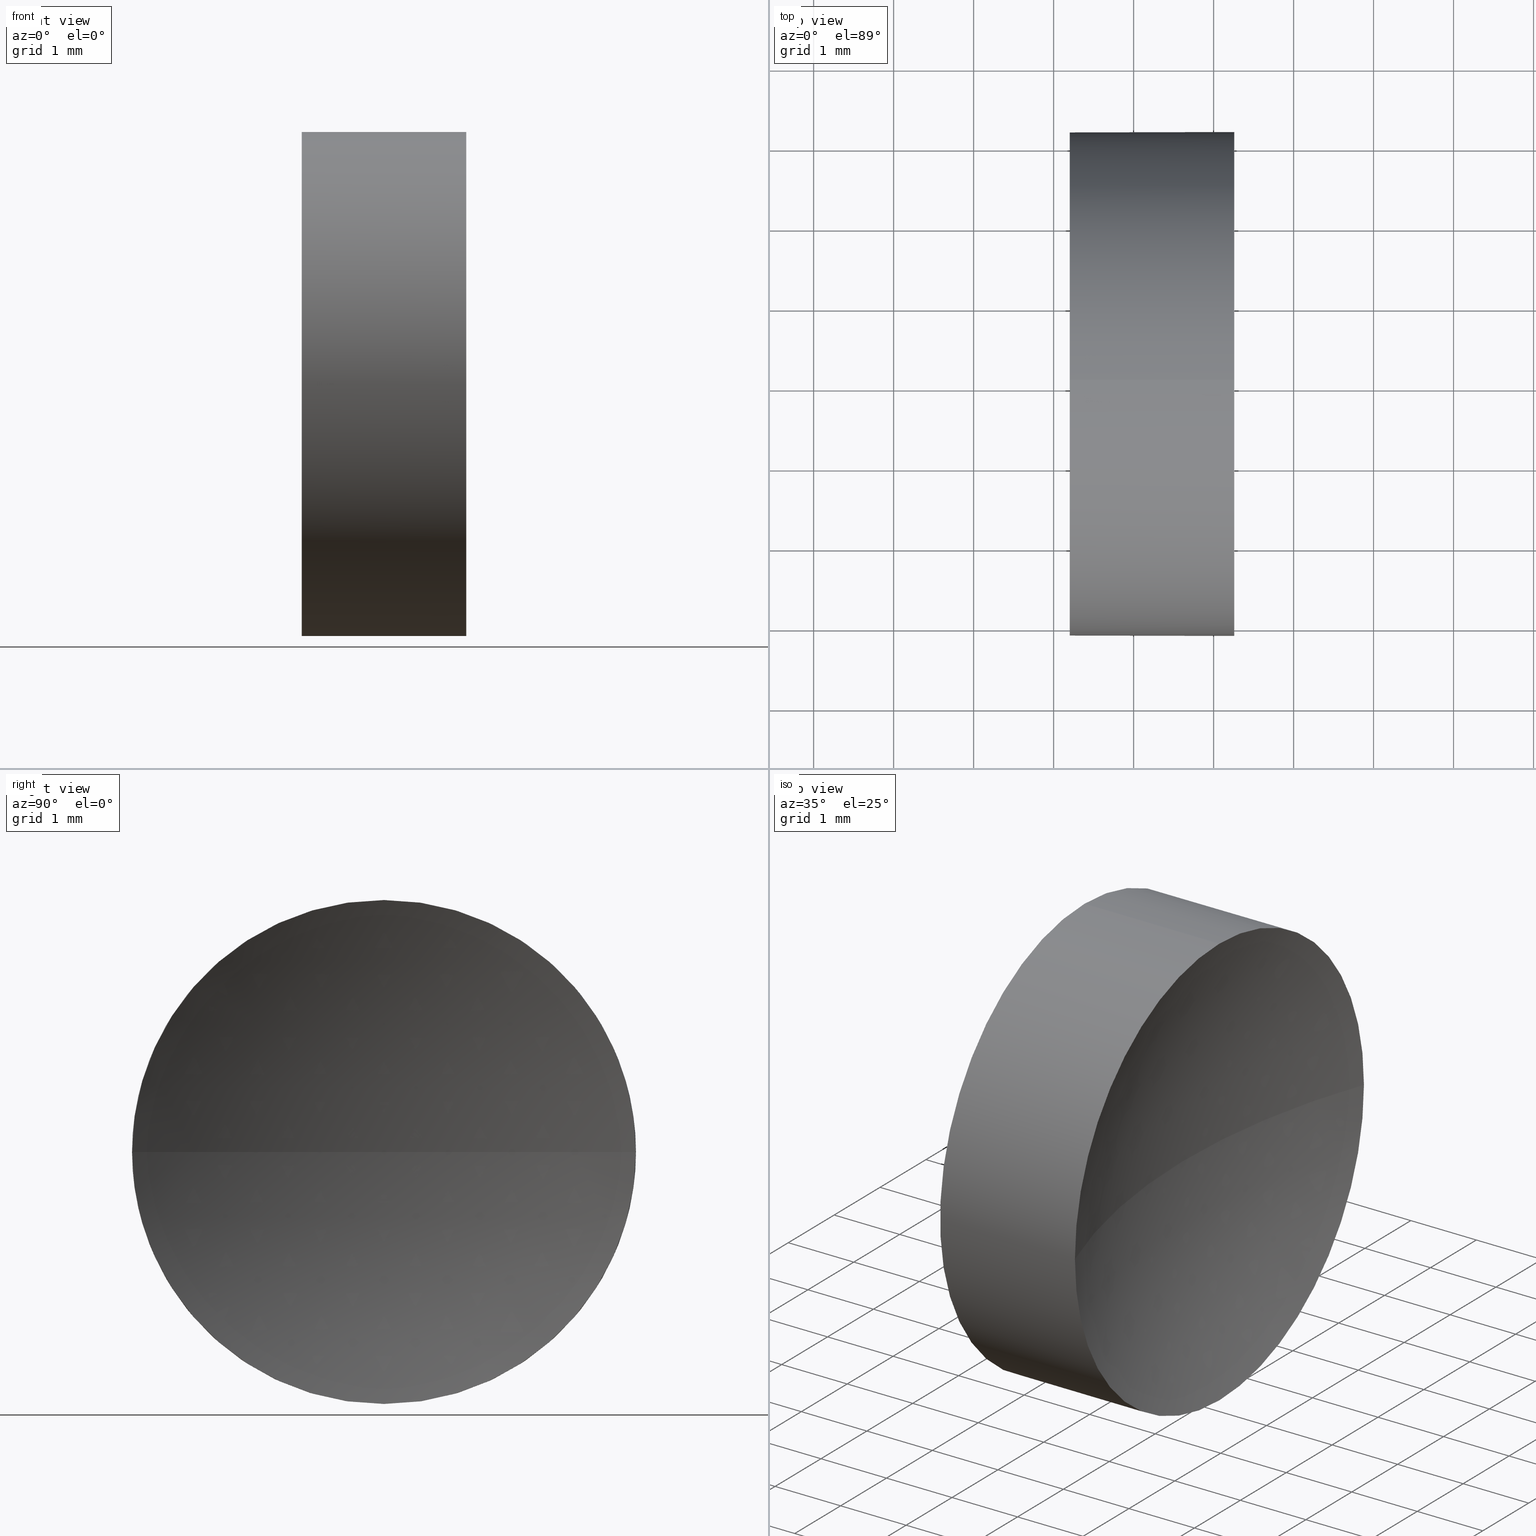
[diagram: canonical four-view strip — front | top / right | iso, engineering-drawing reading convention]
A machine part, canonical four-view strip (front | top / right | iso — engineering-drawing reading convention). The complete STEP part file that produces these views, byte-faithful:
ISO-10303-21;
HEADER;
FILE_DESCRIPTION (( 'STEP AP214' ),
    '1' );
FILE_NAME ('120247.STEP',
    '2019-06-24T06:06:14',
    ( '' ),
    ( '' ),
    'SwSTEP 2.0',
    'SolidWorks 2016',
    '' );
FILE_SCHEMA (( 'AUTOMOTIVE_DESIGN' ));
ENDSEC;

DATA;
#2 = DIRECTION ( 'NONE',  ( -1.000000000000000000, -0.0000000000000000000, -0.0000000000000000000 ) ) ;
#1 = CIRCLE ( 'NONE', #150, 3.149999999999998100 ) ;
#3 = CARTESIAN_POINT ( 'NONE',  ( 22.20087548928661300, 13.03112609140304000, -3.149999999999998100 ) ) ;
#4 = DIRECTION ( 'NONE',  ( -1.000000000000000000, -0.0000000000000000000, -0.0000000000000000000 ) ) ;
#5 = LINE ( 'NONE', #109, #106 ) ;
#6 = FILL_AREA_STYLE_COLOUR ( '', #34 ) ;
#7 = DIRECTION ( 'NONE',  ( 0.0000000000000000000, 0.0000000000000000000, 1.000000000000000000 ) ) ;
#8 =( LENGTH_UNIT ( ) NAMED_UNIT ( * ) SI_UNIT ( .MILLI., .METRE. ) );
#9 = DIRECTION ( 'NONE',  ( -1.000000000000000000, -0.0000000000000000000, -0.0000000000000000000 ) ) ;
#10 = CIRCLE ( 'NONE', #122, 9.170000000000005300 ) ;
#11 = SURFACE_STYLE_USAGE ( .BOTH. , #146 ) ;
#12 = FACE_OUTER_BOUND ( 'NONE', #152, .T. ) ;
#13 = ORIENTED_EDGE ( 'NONE', *, *, #71, .T. ) ;
#14 = DIRECTION ( 'NONE',  ( 0.0000000000000000000, 0.0000000000000000000, 1.000000000000000000 ) ) ;
#15 = DIRECTION ( 'NONE',  ( -1.000000000000000000, -0.0000000000000000000, -0.0000000000000000000 ) ) ;
#16 = SPHERICAL_SURFACE ( 'NONE', #158, 9.170000000000005300 ) ;
#17 = ORIENTED_EDGE ( 'NONE', *, *, #110, .F. ) ;
#18 = CARTESIAN_POINT ( 'NONE',  ( 24.25888386169071300, 13.03112609140304000, 0.0000000000000000000 ) ) ;
#19 = DIRECTION ( 'NONE',  ( 0.0000000000000000000, -1.000000000000000000, -1.224646799147353200E-016 ) ) ;
#20 =( NAMED_UNIT ( * ) PLANE_ANGLE_UNIT ( ) SI_UNIT ( $, .RADIAN. ) );
#21 = CIRCLE ( 'NONE', #131, 3.149999999999998100 ) ;
#22 = VERTEX_POINT ( 'NONE', #3 ) ;
#23 = AXIS2_PLACEMENT_3D ( 'NONE', #18, #118, #7 ) ;
#24 = ADVANCED_FACE ( 'NONE', ( #183 ), #132, .T. ) ;
#25 = EDGE_LOOP ( 'NONE', ( #60, #127, #17, #173 ) ) ;
#26 = ORIENTED_EDGE ( 'NONE', *, *, #80, .T. ) ;
#27 = PLANE ( 'NONE',  #107 ) ;
#28 = EDGE_CURVE ( 'NONE', #67, #45, #55, .T. ) ;
#29 = CARTESIAN_POINT ( 'NONE',  ( 24.25888386169071300, 13.03112609140304000, 0.0000000000000000000 ) ) ;
#30 = CIRCLE ( 'NONE', #130, 3.149999999999998100 ) ;
#31 = CARTESIAN_POINT ( 'NONE',  ( 21.15647192244426100, 13.03112609140304000, 3.149999999999998100 ) ) ;
#32 = DIRECTION ( 'NONE',  ( -1.000000000000000000, -0.0000000000000000000, -0.0000000000000000000 ) ) ;
#33 = AXIS2_PLACEMENT_3D ( 'NONE', #129, #101, #66 ) ;
#35 =( NAMED_UNIT ( * ) PLANE_ANGLE_UNIT ( ) SI_UNIT ( $, .RADIAN. ) );
#34 = COLOUR_RGB ( '',1.000000000000000000, 1.000000000000000000, 1.000000000000000000 ) ;
#36 = ORIENTED_EDGE ( 'NONE', *, *, #65, .T. ) ;
#37 = CARTESIAN_POINT ( 'NONE',  ( 24.25888386169071300, 13.03112609140304000, 0.0000000000000000000 ) ) ;
#38 = AXIS2_PLACEMENT_3D ( 'NONE', #74, #59, #51 ) ;
#39 = CARTESIAN_POINT ( 'NONE',  ( 32.87087550125935600, 13.03112609140304600, 0.0000000000000000000 ) ) ;
#40 =( LENGTH_UNIT ( ) NAMED_UNIT ( * ) SI_UNIT ( .MILLI., .METRE. ) );
#41 = FACE_OUTER_BOUND ( 'NONE', #90, .T. ) ;
#42 = PRODUCT_DEFINITION_SHAPE ( 'NONE', 'NONE',  #186 ) ;
#43 = CIRCLE ( 'NONE', #104, 9.170000000000005300 ) ;
#44 = PRESENTATION_LAYER_ASSIGNMENT (  '', '', ( #78 ) ) ;
#45 = VERTEX_POINT ( 'NONE', #126 ) ;
#46 =( GEOMETRIC_REPRESENTATION_CONTEXT ( 3 ) GLOBAL_UNCERTAINTY_ASSIGNED_CONTEXT ( ( #180 ) ) GLOBAL_UNIT_ASSIGNED_CONTEXT ( ( #128, #20, #120 ) ) REPRESENTATION_CONTEXT ( 'NONE', 'WORKASPACE' ) );
#47 = CARTESIAN_POINT ( 'NONE',  ( 21.15647192244426100, 13.03112609140304000, 0.0000000000000000000 ) ) ;
#48 = DIRECTION ( 'NONE',  ( -1.000000000000000000, -0.0000000000000000000, -0.0000000000000000000 ) ) ;
#49 = VERTEX_POINT ( 'NONE', #82 ) ;
#50 = DIRECTION ( 'NONE',  ( 0.0000000000000000000, 0.0000000000000000000, 1.000000000000000000 ) ) ;
#51 = DIRECTION ( 'NONE',  ( 0.0000000000000000000, 0.0000000000000000000, 1.000000000000000000 ) ) ;
#52 = CARTESIAN_POINT ( 'NONE',  ( 21.15647192244426100, 13.03112609140304000, 0.0000000000000000000 ) ) ;
#53 = ORIENTED_EDGE ( 'NONE', *, *, #65, .F. ) ;
#54 = ORIENTED_EDGE ( 'NONE', *, *, #144, .F. ) ;
#55 = CIRCLE ( 'NONE', #91, 3.149999999999998100 ) ;
#56 = CARTESIAN_POINT ( 'NONE',  ( 24.25888386169071300, 9.881126091403048800, 0.0000000000000000000 ) ) ;
#57 =( GEOMETRIC_REPRESENTATION_CONTEXT ( 3 ) GLOBAL_UNCERTAINTY_ASSIGNED_CONTEXT ( ( #137 ) ) GLOBAL_UNIT_ASSIGNED_CONTEXT ( ( #40, #147, #148 ) ) REPRESENTATION_CONTEXT ( 'NONE', 'WORKASPACE' ) );
#58 = DIRECTION ( 'NONE',  ( 0.0000000000000000000, 0.0000000000000000000, 1.000000000000000000 ) ) ;
#59 = DIRECTION ( 'NONE',  ( -1.000000000000000000, -0.0000000000000000000, -0.0000000000000000000 ) ) ;
#60 = ORIENTED_EDGE ( 'NONE', *, *, #79, .F. ) ;
#61 = AXIS2_PLACEMENT_3D ( 'NONE', #52, #9, #116 ) ;
#62 = DIRECTION ( 'NONE',  ( 0.0000000000000000000, -1.000000000000000000, 0.0000000000000000000 ) ) ;
#63 = APPLICATION_CONTEXT ( 'automotive_design' ) ;
#64 = ORIENTED_EDGE ( 'NONE', *, *, #100, .T. ) ;
#65 = EDGE_CURVE ( 'NONE', #164, #22, #5, .T. ) ;
#66 = DIRECTION ( 'NONE',  ( 1.000000000000000000, 0.0000000000000000000, 0.0000000000000000000 ) ) ;
#67 = VERTEX_POINT ( 'NONE', #56 ) ;
#68 = ADVANCED_FACE ( 'NONE', ( #41 ), #27, .F. ) ;
#69 = CLOSED_SHELL ( 'NONE', ( #168, #151, #123, #24, #68 ) ) ;
#70 = CARTESIAN_POINT ( 'NONE',  ( 22.20087548928661300, 13.03112609140304000, 3.149999999999998100 ) ) ;
#71 = EDGE_CURVE ( 'NONE', #164, #67, #30, .T. ) ;
#72 = DIRECTION ( 'NONE',  ( -1.000000000000000000, 0.0000000000000000000, 0.0000000000000000000 ) ) ;
#73 = DIRECTION ( 'NONE',  ( 0.0000000000000000000, 0.0000000000000000000, 1.000000000000000000 ) ) ;
#74 = CARTESIAN_POINT ( 'NONE',  ( 22.20087548928661300, 13.03112609140304000, 0.0000000000000000000 ) ) ;
#75 = APPLICATION_CONTEXT ( 'automotive_design' ) ;
#76 = PRODUCT_CONTEXT ( 'NONE', #63, 'mechanical' ) ;
#77 = VERTEX_POINT ( 'NONE', #70 ) ;
#78 = STYLED_ITEM ( 'NONE', ( #125 ), #171 ) ;
#79 = EDGE_CURVE ( 'NONE', #49, #164, #115, .T. ) ;
#80 = EDGE_CURVE ( 'NONE', #45, #77, #93, .T. ) ;
#81 = EDGE_LOOP ( 'NONE', ( #53, #13, #134, #26, #156 ) ) ;
#82 = CARTESIAN_POINT ( 'NONE',  ( 24.25888386169071300, 16.18112609140303300, 3.857637417314151800E-016 ) ) ;
#83 = ORIENTED_EDGE ( 'NONE', *, *, #138, .F. ) ;
#84 = SURFACE_SIDE_STYLE ('',( #102 ) ) ;
#85 = DIRECTION ( 'NONE',  ( 0.0000000000000000000, 0.0000000000000000000, 1.000000000000000000 ) ) ;
#86 = ORIENTED_EDGE ( 'NONE', *, *, #110, .T. ) ;
#87 = MECHANICAL_DESIGN_GEOMETRIC_PRESENTATION_REPRESENTATION (  '', ( #78 ), #57 ) ;
#88 = DIRECTION ( 'NONE',  ( 0.0000000000000000000, 0.0000000000000000000, -1.000000000000000000 ) ) ;
#89 = CIRCLE ( 'NONE', #38, 3.149999999999998100 ) ;
#90 = EDGE_LOOP ( 'NONE', ( #64, #161 ) ) ;
#91 = AXIS2_PLACEMENT_3D ( 'NONE', #29, #2, #94 ) ;
#92 = ORIENTED_EDGE ( 'NONE', *, *, #80, .F. ) ;
#93 = LINE ( 'NONE', #31, #124 ) ;
#94 = DIRECTION ( 'NONE',  ( 0.0000000000000000000, 0.0000000000000000000, 1.000000000000000000 ) ) ;
#95 = DIRECTION ( 'NONE',  ( -1.000000000000000000, -0.0000000000000000000, -0.0000000000000000000 ) ) ;
#96 = VERTEX_POINT ( 'NONE', #117 ) ;
#97 = EDGE_CURVE ( 'NONE', #22, #77, #89, .T. ) ;
#98 = FACE_OUTER_BOUND ( 'NONE', #166, .T. ) ;
#99 = DIRECTION ( 'NONE',  ( 0.0000000000000000000, 0.0000000000000000000, 1.000000000000000000 ) ) ;
#100 = EDGE_CURVE ( 'NONE', #77, #22, #21, .T. ) ;
#101 = DIRECTION ( 'NONE',  ( 0.0000000000000000000, 0.0000000000000000000, 1.000000000000000000 ) ) ;
#102 = SURFACE_STYLE_FILL_AREA ( #154 ) ;
#103 = ORIENTED_EDGE ( 'NONE', *, *, #79, .T. ) ;
#104 = AXIS2_PLACEMENT_3D ( 'NONE', #39, #88, #72 ) ;
#105 = UNCERTAINTY_MEASURE_WITH_UNIT (LENGTH_MEASURE( 1.000000000000000100E-005 ), #8, 'distance_accuracy_value', 'NONE');
#106 = VECTOR ( 'NONE', #48, 1000.000000000000000 ) ;
#107 = AXIS2_PLACEMENT_3D ( 'NONE', #111, #112, #174 ) ;
#108 = PRESENTATION_STYLE_ASSIGNMENT (( #141 ) ) ;
#109 = CARTESIAN_POINT ( 'NONE',  ( 21.15647192244426100, 13.03112609140304000, -3.149999999999998100 ) ) ;
#110 = EDGE_CURVE ( 'NONE', #67, #96, #43, .T. ) ;
#111 = CARTESIAN_POINT ( 'NONE',  ( 22.20087548928661300, 13.03112609140304000, 0.0000000000000000000 ) ) ;
#112 = DIRECTION ( 'NONE',  ( 1.000000000000000000, 0.0000000000000000000, 0.0000000000000000000 ) ) ;
#114 = CARTESIAN_POINT ( 'NONE',  ( 32.87087550125935600, 13.03112609140304600, 0.0000000000000000000 ) ) ;
#113 = CYLINDRICAL_SURFACE ( 'NONE', #61, 3.149999999999998100 ) ;
#115 = CIRCLE ( 'NONE', #23, 3.149999999999998100 ) ;
#116 = DIRECTION ( 'NONE',  ( 0.0000000000000000000, 0.0000000000000000000, 1.000000000000000000 ) ) ;
#117 = CARTESIAN_POINT ( 'NONE',  ( 23.70087550125935000, 13.03112609140304600, 0.0000000000000000000 ) ) ;
#118 = DIRECTION ( 'NONE',  ( -1.000000000000000000, -0.0000000000000000000, -0.0000000000000000000 ) ) ;
#119 = PRODUCT_DEFINITION_CONTEXT ( 'detailed design', #75, 'design' ) ;
#120 =( NAMED_UNIT ( * ) SI_UNIT ( $, .STERADIAN. ) SOLID_ANGLE_UNIT ( ) );
#121 = APPLICATION_PROTOCOL_DEFINITION ( 'draft international standard', 'automotive_design', 1998, #63 ) ;
#122 = AXIS2_PLACEMENT_3D ( 'NONE', #176, #178, #19 ) ;
#123 = ADVANCED_FACE ( 'NONE', ( #98 ), #145, .F. ) ;
#124 = VECTOR ( 'NONE', #15, 1000.000000000000000 ) ;
#125 = PRESENTATION_STYLE_ASSIGNMENT (( #11 ) ) ;
#127 = ORIENTED_EDGE ( 'NONE', *, *, #138, .T. ) ;
#126 = CARTESIAN_POINT ( 'NONE',  ( 24.25888386169071300, 13.03112609140304000, 3.149999999999998100 ) ) ;
#128 =( LENGTH_UNIT ( ) NAMED_UNIT ( * ) SI_UNIT ( .MILLI., .METRE. ) );
#129 = CARTESIAN_POINT ( 'NONE',  ( 0.0000000000000000000, 0.0000000000000000000, 0.0000000000000000000 ) ) ;
#130 = AXIS2_PLACEMENT_3D ( 'NONE', #136, #4, #73 ) ;
#131 = AXIS2_PLACEMENT_3D ( 'NONE', #140, #32, #85 ) ;
#132 = CYLINDRICAL_SURFACE ( 'NONE', #153, 3.149999999999998100 ) ;
#133 = FACE_OUTER_BOUND ( 'NONE', #25, .T. ) ;
#134 = ORIENTED_EDGE ( 'NONE', *, *, #28, .T. ) ;
#135 = AXIS2_PLACEMENT_3D ( 'NONE', #143, #99, #62 ) ;
#136 = CARTESIAN_POINT ( 'NONE',  ( 24.25888386169071300, 13.03112609140304000, 0.0000000000000000000 ) ) ;
#137 = UNCERTAINTY_MEASURE_WITH_UNIT (LENGTH_MEASURE( 1.000000000000000100E-005 ), #40, 'distance_accuracy_value', 'NONE');
#138 = EDGE_CURVE ( 'NONE', #49, #96, #10, .T. ) ;
#139 = FILL_AREA_STYLE_COLOUR ( '', #155 ) ;
#140 = CARTESIAN_POINT ( 'NONE',  ( 22.20087548928661300, 13.03112609140304000, 0.0000000000000000000 ) ) ;
#141 = SURFACE_STYLE_USAGE ( .BOTH. , #84 ) ;
#142 = PRODUCT_RELATED_PRODUCT_CATEGORY ( 'part', '', ( #163 ) ) ;
#143 = CARTESIAN_POINT ( 'NONE',  ( 32.87087550125935600, 13.03112609140304600, 0.0000000000000000000 ) ) ;
#144 = EDGE_CURVE ( 'NONE', #45, #49, #1, .T. ) ;
#145 = SPHERICAL_SURFACE ( 'NONE', #135, 9.170000000000005300 ) ;
#146 = SURFACE_SIDE_STYLE ('',( #184 ) ) ;
#147 =( NAMED_UNIT ( * ) PLANE_ANGLE_UNIT ( ) SI_UNIT ( $, .RADIAN. ) );
#148 =( NAMED_UNIT ( * ) SI_UNIT ( $, .STERADIAN. ) SOLID_ANGLE_UNIT ( ) );
#149 = ORIENTED_EDGE ( 'NONE', *, *, #100, .F. ) ;
#150 = AXIS2_PLACEMENT_3D ( 'NONE', #37, #157, #50 ) ;
#151 = ADVANCED_FACE ( 'NONE', ( #133 ), #16, .F. ) ;
#152 = EDGE_LOOP ( 'NONE', ( #103, #36, #149, #92, #170 ) ) ;
#153 = AXIS2_PLACEMENT_3D ( 'NONE', #47, #95, #14 ) ;
#155 = COLOUR_RGB ( '',1.000000000000000000, 1.000000000000000000, 1.000000000000000000 ) ;
#154 = FILL_AREA_STYLE ('',( #139 ) ) ;
#156 = ORIENTED_EDGE ( 'NONE', *, *, #97, .F. ) ;
#157 = DIRECTION ( 'NONE',  ( -1.000000000000000000, -0.0000000000000000000, -0.0000000000000000000 ) ) ;
#158 = AXIS2_PLACEMENT_3D ( 'NONE', #114, #58, #177 ) ;
#159 =( NAMED_UNIT ( * ) SI_UNIT ( $, .STERADIAN. ) SOLID_ANGLE_UNIT ( ) );
#160 = SHAPE_DEFINITION_REPRESENTATION ( #42, #171 ) ;
#161 = ORIENTED_EDGE ( 'NONE', *, *, #97, .T. ) ;
#162 = MANIFOLD_SOLID_BREP ( '��ת1', #69 ) ;
#163 = PRODUCT ( '120247', '120247', '', ( #76 ) ) ;
#164 = VERTEX_POINT ( 'NONE', #181 ) ;
#165 = FILL_AREA_STYLE ('',( #6 ) ) ;
#166 = EDGE_LOOP ( 'NONE', ( #83, #54, #179, #86 ) ) ;
#167 =( GEOMETRIC_REPRESENTATION_CONTEXT ( 3 ) GLOBAL_UNCERTAINTY_ASSIGNED_CONTEXT ( ( #105 ) ) GLOBAL_UNIT_ASSIGNED_CONTEXT ( ( #8, #35, #159 ) ) REPRESENTATION_CONTEXT ( 'NONE', 'WORKASPACE' ) );
#168 = ADVANCED_FACE ( 'NONE', ( #12 ), #113, .T. ) ;
#169 = PRODUCT_DEFINITION_FORMATION_WITH_SPECIFIED_SOURCE ( '�κ�', '', #163, .NOT_KNOWN. ) ;
#170 = ORIENTED_EDGE ( 'NONE', *, *, #144, .T. ) ;
#171 = ADVANCED_BREP_SHAPE_REPRESENTATION ( '120247', ( #162, #33 ), #46 ) ;
#172 = PRESENTATION_LAYER_ASSIGNMENT (  '', '', ( #175 ) ) ;
#173 = ORIENTED_EDGE ( 'NONE', *, *, #71, .F. ) ;
#174 = DIRECTION ( 'NONE',  ( 0.0000000000000000000, 0.0000000000000000000, -1.000000000000000000 ) ) ;
#175 = STYLED_ITEM ( 'NONE', ( #108 ), #162 ) ;
#176 = CARTESIAN_POINT ( 'NONE',  ( 32.87087550125935600, 13.03112609140304600, 0.0000000000000000000 ) ) ;
#177 = DIRECTION ( 'NONE',  ( 0.0000000000000000000, -1.000000000000000000, 0.0000000000000000000 ) ) ;
#178 = DIRECTION ( 'NONE',  ( 0.0000000000000000000, -1.224646799147353200E-016, 1.000000000000000000 ) ) ;
#179 = ORIENTED_EDGE ( 'NONE', *, *, #28, .F. ) ;
#180 = UNCERTAINTY_MEASURE_WITH_UNIT (LENGTH_MEASURE( 1.000000000000000100E-005 ), #128, 'distance_accuracy_value', 'NONE');
#181 = CARTESIAN_POINT ( 'NONE',  ( 24.25888386169071300, 13.03112609140304000, -3.149999999999998100 ) ) ;
#182 = APPLICATION_PROTOCOL_DEFINITION ( 'draft international standard', 'automotive_design', 1998, #75 ) ;
#183 = FACE_OUTER_BOUND ( 'NONE', #81, .T. ) ;
#184 = SURFACE_STYLE_FILL_AREA ( #165 ) ;
#185 = MECHANICAL_DESIGN_GEOMETRIC_PRESENTATION_REPRESENTATION (  '', ( #175 ), #167 ) ;
#186 = PRODUCT_DEFINITION ( 'δ֪', '', #169, #119 ) ;
ENDSEC;
END-ISO-10303-21;
